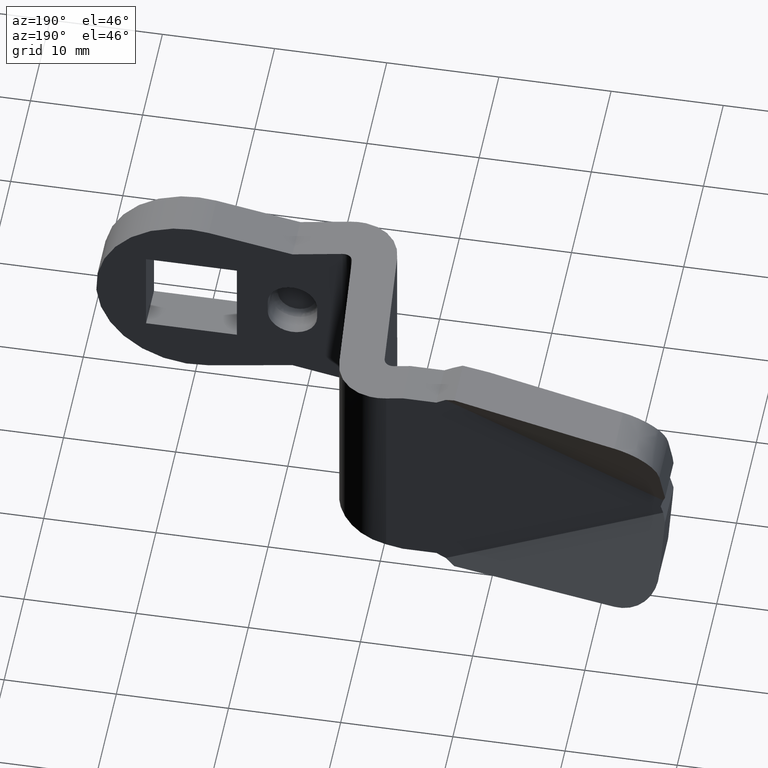
[diagram: clean part render]
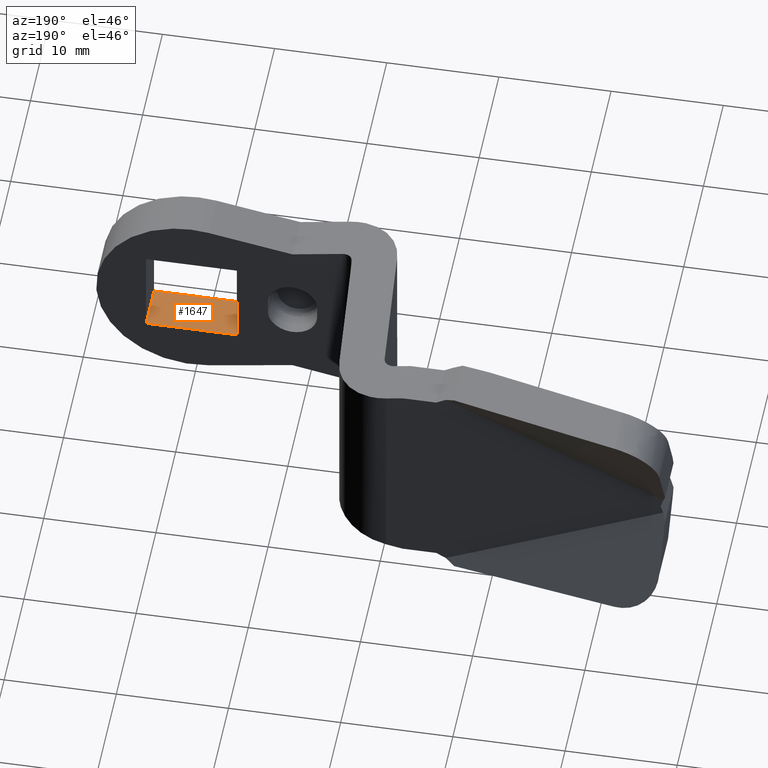
[diagram: same view with one face highlighted and labeled with its STEP entity id]
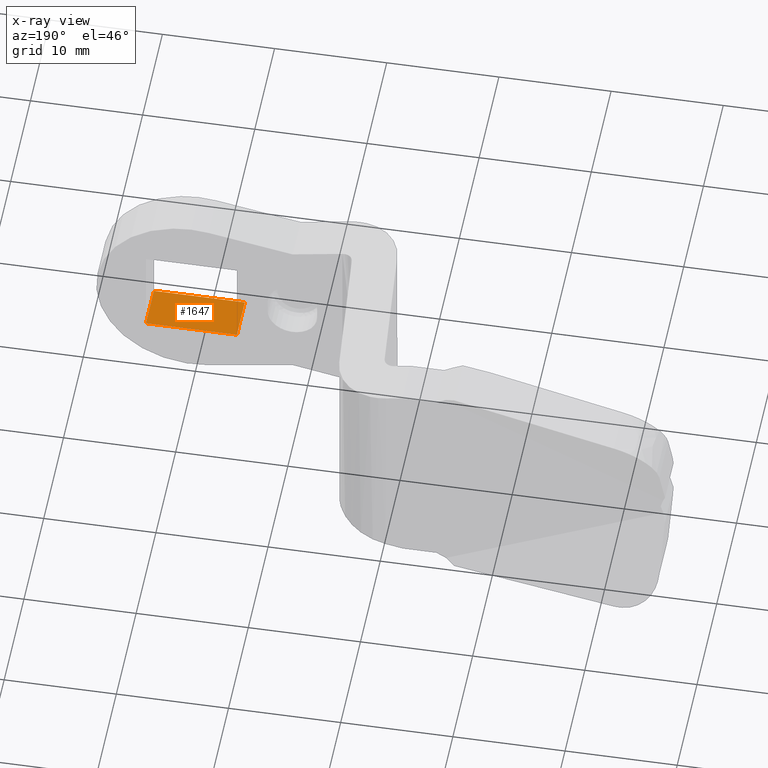
[diagram: x-ray of the same camera — body ghosted, the highlighted face saturated]
A machine part, auxiliary view. The second image highlights one B-rep face of the part: STEP entity #1647.
The next image is the same camera in x-ray: the body ghosted, the highlighted face saturated — about 0% of this face is hidden behind the body in this view.
In plain terms, the highlighted face is a freeform B-spline surface patch.
Its self-contained STEP definition (entity closure, byte-faithful):
#1543=CARTESIAN_POINT('',(-4.050000192364635,-18.0,-4.050000192364680));
#1544=VERTEX_POINT('',#1543);
#1557=CARTESIAN_POINT('',(-4.050000192364635,-22.000000199999949,-4.050000192364680));
#1558=VERTEX_POINT('',#1557);
#1564=CARTESIAN_POINT('',(-4.050000192364635,-22.000000199999949,-4.050000192364680));
#1565=CARTESIAN_POINT('',(-4.050000192364635,-18.0,-4.050000192364680));
#1566=QUASI_UNIFORM_CURVE('',1,(#1564,#1565),.UNSPECIFIED.,.F.,.U.);
#1567=EDGE_CURVE('',#1558,#1544,#1566,.T.);
#1605=CARTESIAN_POINT('',(4.050000192364690,-18.0,-4.050000192364665));
#1606=VERTEX_POINT('',#1605);
#1612=CARTESIAN_POINT('',(4.050000192364690,-22.000000199999949,-4.050000192364665));
#1613=VERTEX_POINT('',#1612);
#1614=CARTESIAN_POINT('',(4.050000192364690,-22.000000199999949,-4.050000192364665));
#1615=CARTESIAN_POINT('',(4.050000192364690,-18.0,-4.050000192364665));
#1616=QUASI_UNIFORM_CURVE('',1,(#1614,#1615),.UNSPECIFIED.,.F.,.U.);
#1617=EDGE_CURVE('',#1613,#1606,#1616,.T.);
#1628=CARTESIAN_POINT('',(-4.454595195882492,-22.199800014491480,-4.050000192364680));
#1629=CARTESIAN_POINT('',(4.454595413141488,-22.199800014491480,-4.050000192364680));
#1630=CARTESIAN_POINT('',(-4.454595195882492,-17.800199899406170,-4.050000192364680));
#1631=CARTESIAN_POINT('',(4.454595413141488,-17.800199899406170,-4.050000192364680));
#1632=B_SPLINE_SURFACE_WITH_KNOTS('',1,1,((#1628,#1630),(#1629,#1631)),.UNSPECIFIED.,.F.,.F.,.U.,(2,2),(2,2),(0.0,8.909190609023980),(0.0,4.399600115085310),.UNSPECIFIED.);
#1633=CARTESIAN_POINT('',(-4.050000192364635,-18.0,-4.050000192364680));
#1634=CARTESIAN_POINT('',(4.050000192364690,-18.0,-4.050000192364665));
#1635=QUASI_UNIFORM_CURVE('',1,(#1633,#1634),.UNSPECIFIED.,.F.,.U.);
#1636=EDGE_CURVE('',#1544,#1606,#1635,.T.);
#1637=ORIENTED_EDGE('',*,*,#1636,.F.);
#1638=ORIENTED_EDGE('',*,*,#1567,.F.);
#1639=CARTESIAN_POINT('',(4.050000192364690,-22.000000199999949,-4.050000192364665));
#1640=CARTESIAN_POINT('',(-4.050000192364635,-22.000000199999949,-4.050000192364680));
#1641=QUASI_UNIFORM_CURVE('',1,(#1639,#1640),.UNSPECIFIED.,.F.,.U.);
#1642=EDGE_CURVE('',#1613,#1558,#1641,.T.);
#1643=ORIENTED_EDGE('',*,*,#1642,.F.);
#1644=ORIENTED_EDGE('',*,*,#1617,.T.);
#1645=EDGE_LOOP('',(#1637,#1638,#1643,#1644));
#1646=FACE_OUTER_BOUND('',#1645,.T.);
#1647=ADVANCED_FACE('',(#1646),#1632,.T.);